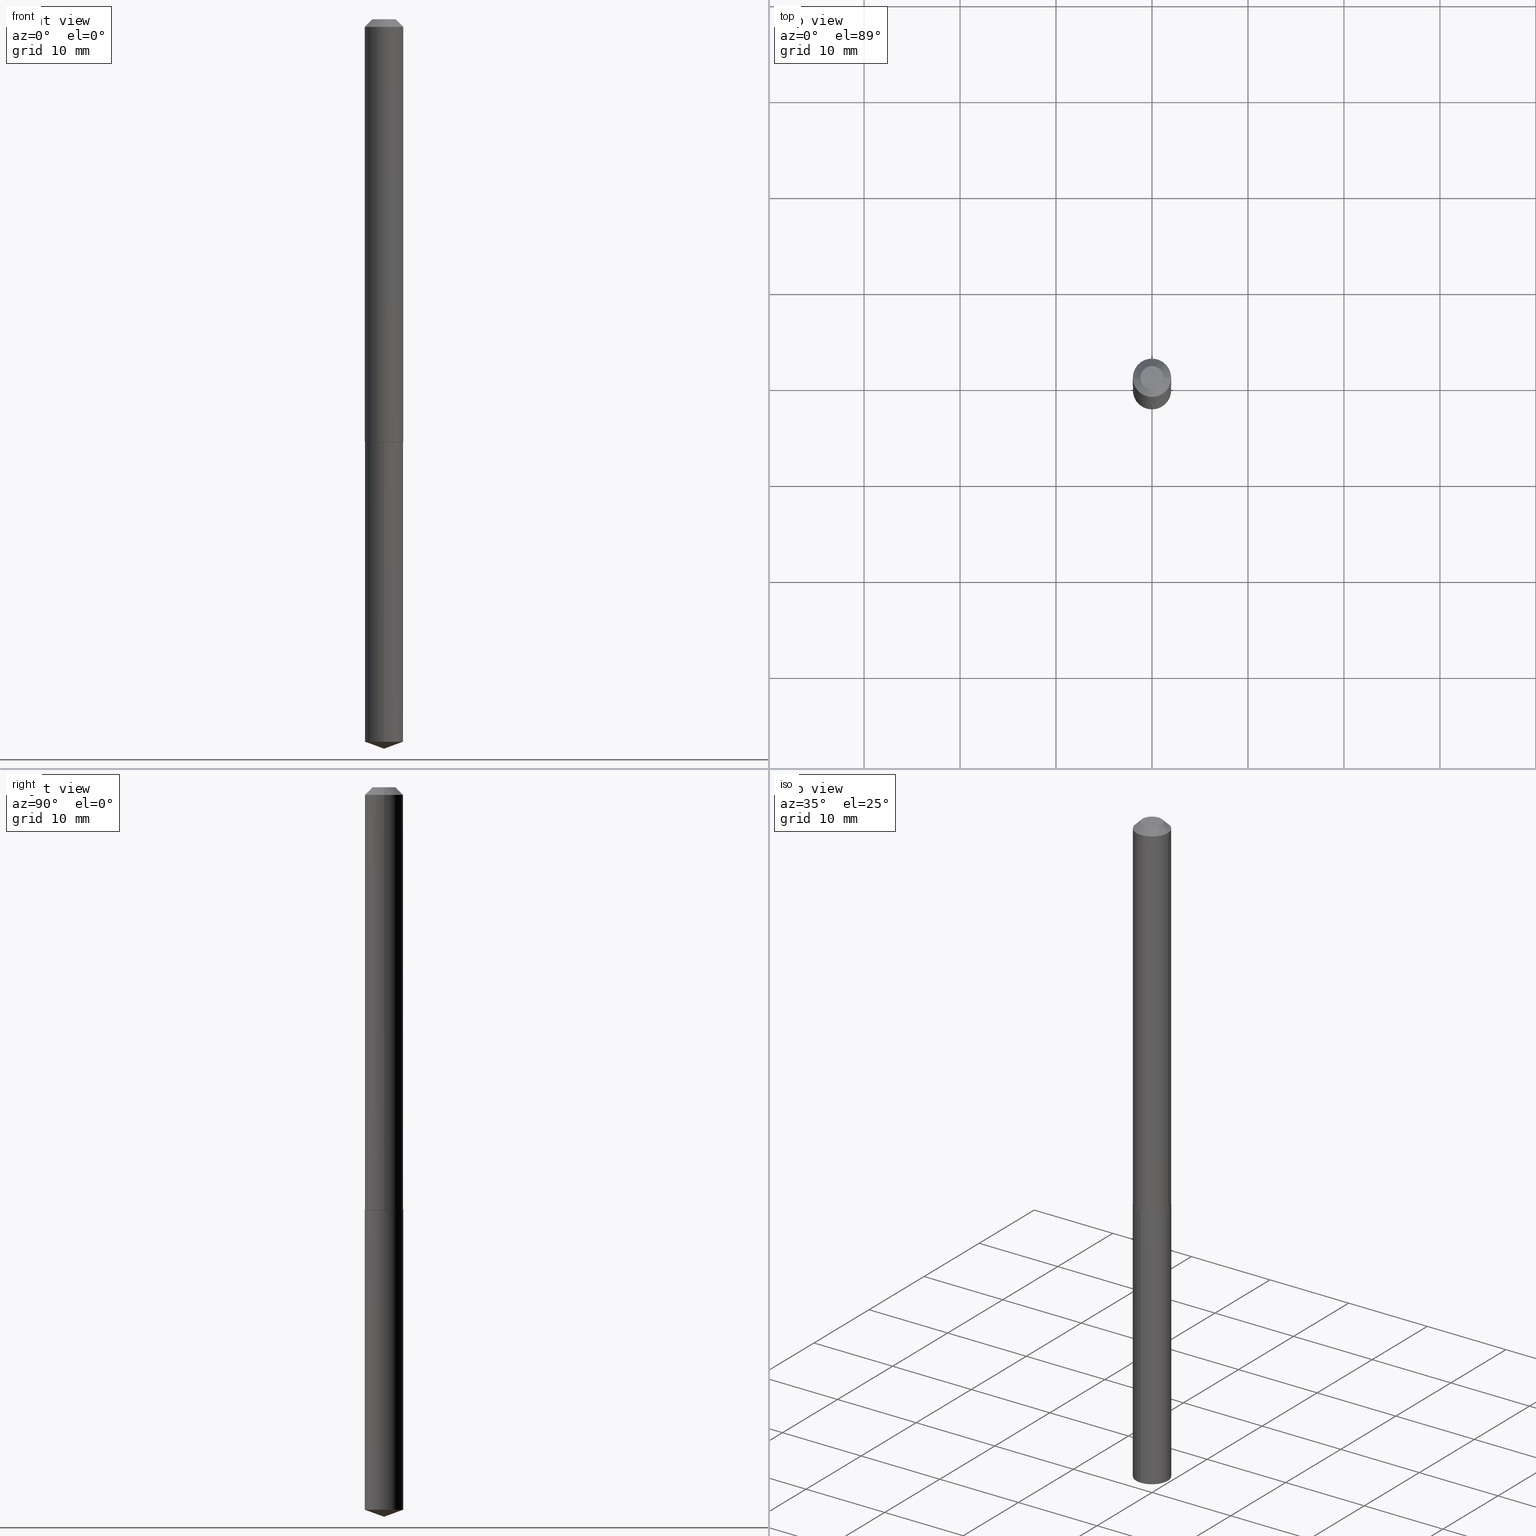
[diagram: canonical four-view strip — front | top / right | iso, engineering-drawing reading convention]
A machine part, canonical four-view strip (front | top / right | iso — engineering-drawing reading convention). The complete STEP part file that produces these views, byte-faithful:
ISO-10303-21;
HEADER;
FILE_DESCRIPTION (( 'STEP AP203' ),
    '1' );
FILE_NAME ('6030.STEP',
    '2024-04-23T02:05:32',
    ( '' ),
    ( '' ),
    'SwSTEP 2.0',
    'SolidWorks 2023',
    '' );
FILE_SCHEMA (( 'CONFIG_CONTROL_DESIGN' ));
ENDSEC;

DATA;
#1 = CARTESIAN_POINT ( 'NONE',  ( 0.000000000000000000, 0.000000000000000000, 0.000000000000000000 ) ) ;
#2 = ORIENTED_EDGE ( 'NONE', *, *, #178, .T. ) ;
#3 = CIRCLE ( 'NONE', #201, 0.07875000000000022260 ) ;
#4 = CONICAL_SURFACE ( 'NONE', #163, 0.07875000000000022260, 0.7853981633974482790 ) ;
#5 = APPROVAL_DATE_TIME ( #94, #50 ) ;
#6 = AXIS2_PLACEMENT_3D ( 'NONE', #103, #137, #261 ) ;
#7 = SHAPE_DEFINITION_REPRESENTATION ( #357, #302 ) ;
#8 = DESIGN_CONTEXT ( 'detailed design', #296, 'design' ) ;
#9 = DIMENSIONAL_EXPONENTS ( 1.000000000000000000, 0.000000000000000000, 0.000000000000000000, 0.000000000000000000, 0.000000000000000000, 0.000000000000000000, 0.000000000000000000 ) ;
#10 = ORIENTED_EDGE ( 'NONE', *, *, #185, .F. ) ;
#11 = EDGE_LOOP ( 'NONE', ( #174, #381, #175, #254 ) ) ;
#12 = CIRCLE ( 'NONE', #374, 0.04750000000000000749 ) ;
#13 = AXIS2_PLACEMENT_3D ( 'NONE', #291, #109, #44 ) ;
#14 = EDGE_CURVE ( 'NONE', #192, #153, #122, .T. ) ;
#15 = DIRECTION ( 'NONE',  ( -6.982962677686266711E-15, -1.000000000000000000, 3.555975582372723068E-15 ) ) ;
#16 = DIRECTION ( 'NONE',  ( -2.445468806185136597E-29, 3.491481338843145583E-15, 1.000000000000000000 ) ) ;
#17 = CARTESIAN_POINT ( 'NONE',  ( -0.07875000000000022260, -5.486994978197479195E-15, -1.731800000000000006 ) ) ;
#18 = COORDINATED_UNIVERSAL_TIME_OFFSET ( 5, 0, .BEHIND. ) ;
#19 = LINE ( 'NONE', #100, #66 ) ;
#20 = VECTOR ( 'NONE', #323, 39.37007874015748143 ) ;
#21 = CYLINDRICAL_SURFACE ( 'NONE', #25, 0.07875000000000011158 ) ;
#22 = DIRECTION ( 'NONE',  ( -2.439100213155441770E-29, 3.500601526539472950E-15, 1.000000000000000000 ) ) ;
#23 = EDGE_CURVE ( 'NONE', #37, #32, #282, .T. ) ;
#24 = DIRECTION ( 'NONE',  ( -2.439100213155441770E-29, 3.500601526539472950E-15, 1.000000000000000000 ) ) ;
#25 = AXIS2_PLACEMENT_3D ( 'NONE', #1, #365, #217 ) ;
#26 = EDGE_CURVE ( 'NONE', #299, #32, #363, .T. ) ;
#27 = CIRCLE ( 'NONE', #368, 0.07875000000000022260 ) ;
#28 = VERTEX_POINT ( 'NONE', #159 ) ;
#29 = CALENDAR_DATE ( 2024, 22, 4 ) ;
#30 = ORIENTED_EDGE ( 'NONE', *, *, #353, .F. ) ;
#31 = ORIENTED_EDGE ( 'NONE', *, *, #120, .F. ) ;
#32 = VERTEX_POINT ( 'NONE', #317 ) ;
#33 = CARTESIAN_POINT ( 'NONE',  ( 7.642090019328601786E-31, -1.091087918388490144E-16, -0.03125000000000020123 ) ) ;
#34 = ORIENTED_EDGE ( 'NONE', *, *, #318, .F. ) ;
#35 = VERTEX_POINT ( 'NONE', #350 ) ;
#36 = APPROVAL ( #359, 'UNSPECIFIED' ) ;
#37 = VERTEX_POINT ( 'NONE', #197 ) ;
#38 = EDGE_LOOP ( 'NONE', ( #10, #102 ) ) ;
#39 = CIRCLE ( 'NONE', #56, 0.07825000000000031930 ) ;
#40 = AXIS2_PLACEMENT_3D ( 'NONE', #322, #22, #204 ) ;
#41 = DIRECTION ( 'NONE',  ( 0.7071067811865454633, -7.319954787623248157E-15, -0.7071067811865495711 ) ) ;
#42 = DIRECTION ( 'NONE',  ( -2.439100213155441770E-29, 3.500601526539472950E-15, 1.000000000000000000 ) ) ;
#43 = EDGE_CURVE ( 'NONE', #227, #372, #337, .T. ) ;
#44 = DIRECTION ( 'NONE',  ( -1.000000000000000000, 6.982962677686265922E-15, -4.876176775795935793E-29 ) ) ;
#45 = CARTESIAN_POINT ( 'NONE',  ( 8.872200304756381696E-46, -1.266715065846978513E-31, -3.628016142474034163E-17 ) ) ;
#46 = EDGE_CURVE ( 'NONE', #35, #192, #161, .T. ) ;
#47 = FACE_OUTER_BOUND ( 'NONE', #339, .T. ) ;
#48 = CARTESIAN_POINT ( 'NONE',  ( -8.871850338557689614E-28, 1.273606068113621253E-13, 36.37797874015748079 ) ) ;
#49 = CLOSED_SHELL ( 'NONE', ( #148, #252, #222, #277, #92 ) ) ;
#50 = APPROVAL ( #152, 'UNSPECIFIED' ) ;
#51 = ORIENTED_EDGE ( 'NONE', *, *, #26, .F. ) ;
#52 = CARTESIAN_POINT ( 'NONE',  ( -0.04750000000000000749, 3.862451231095210259E-16, -3.628016142474284996E-17 ) ) ;
#53 = EDGE_LOOP ( 'NONE', ( #389, #209, #333, #273 ) ) ;
#54 = EDGE_LOOP ( 'NONE', ( #200, #182, #319, #313 ) ) ;
#55 = COORDINATED_UNIVERSAL_TIME_OFFSET ( 5, 0, .BEHIND. ) ;
#56 = AXIS2_PLACEMENT_3D ( 'NONE', #82, #166, #336 ) ;
#57 = CC_DESIGN_APPROVAL ( #309, ( #236 ) ) ;
#58 = ORIENTED_EDGE ( 'NONE', *, *, #154, .T. ) ;
#59 =( NAMED_UNIT ( * ) PLANE_ANGLE_UNIT ( ) SI_UNIT ( $, .RADIAN. ) );
#60 =( NAMED_UNIT ( * ) SI_UNIT ( $, .STERADIAN. ) SOLID_ANGLE_UNIT ( ) );
#61 = CARTESIAN_POINT ( 'NONE',  ( 4.236285612954512392E-29, -6.048293123277981078E-15, -1.732299999999999951 ) ) ;
#62 = APPROVAL_PERSON_ORGANIZATION ( #290, #50, #274 ) ;
#63 = CARTESIAN_POINT ( 'NONE',  ( 4.236285612954512392E-29, -6.048293123277981078E-15, -1.732299999999999951 ) ) ;
#64 = DIRECTION ( 'NONE',  ( 1.000000000000000000, -6.982962677686266711E-15, 4.868699817970218203E-29 ) ) ;
#65 = AXIS2_PLACEMENT_3D ( 'NONE', #61, #255, #156 ) ;
#66 = VECTOR ( 'NONE', #223, 39.37007874015748143 ) ;
#67 = CARTESIAN_POINT ( 'NONE',  ( 8.872200304756381696E-46, -1.266715065846978513E-31, -3.628016142474034163E-17 ) ) ;
#68 = DIRECTION ( 'NONE',  ( 6.982962677686265922E-15, 1.000000000000000000, -3.500601526539472556E-15 ) ) ;
#69 = DIRECTION ( 'NONE',  ( -6.982962677686266711E-15, -1.000000000000000000, 3.555975582372723068E-15 ) ) ;
#70 = ORIENTED_EDGE ( 'NONE', *, *, #185, .T. ) ;
#71 = FACE_OUTER_BOUND ( 'NONE', #53, .T. ) ;
#72 = CC_DESIGN_APPROVAL ( #50, ( #215 ) ) ;
#73 = CARTESIAN_POINT ( 'NONE',  ( 4.236285612954512392E-29, -6.048293123277981078E-15, -1.732299999999999951 ) ) ;
#74 = DIRECTION ( 'NONE',  ( 2.445468806185136597E-29, -3.491481338843145583E-15, -1.000000000000000000 ) ) ;
#75 = FACE_OUTER_BOUND ( 'NONE', #218, .T. ) ;
#76 = FACE_OUTER_BOUND ( 'NONE', #11, .T. ) ;
#77 = DIRECTION ( 'NONE',  ( -6.561838499445226095E-15, -0.9396926207859108704, 0.3420201433256621626 ) ) ;
#78 = CIRCLE ( 'NONE', #305, 0.07875000000000000056 ) ;
#79 = LOCAL_TIME ( 22, 5, 32.00000000000000000, #382 ) ;
#80 = ADVANCED_FACE ( 'NONE', ( #130 ), #4, .T. ) ;
#81 = DATE_TIME_ROLE ( 'creation_date' ) ;
#82 = CARTESIAN_POINT ( 'NONE',  ( 4.236285612954512392E-29, -6.048293123277981078E-15, -1.732299999999999951 ) ) ;
#83 = EDGE_LOOP ( 'NONE', ( #233, #335, #144, #34 ) ) ;
#84 = PERSON_AND_ORGANIZATION_ROLE ( 'creator' ) ;
#85 = DIRECTION ( 'NONE',  ( 1.000000000000000000, -6.982962677686265922E-15, 0.000000000000000000 ) ) ;
#86 = ORIENTED_EDGE ( 'NONE', *, *, #190, .T. ) ;
#87 = DATE_AND_TIME ( #29, #375 ) ;
#88 = PERSON_AND_ORGANIZATION ( #136, #247 ) ;
#89 = CARTESIAN_POINT ( 'NONE',  ( -0.07875000000000000056, -2.518275682812623564E-15, -0.03125000000000020123 ) ) ;
#90 = VECTOR ( 'NONE', #162, 39.37007874015748143 ) ;
#91 = CIRCLE ( 'NONE', #271, 0.07874999999999997280 ) ;
#92 = ADVANCED_FACE ( 'NONE', ( #75 ), #321, .F. ) ;
#93 = ORIENTED_EDGE ( 'NONE', *, *, #23, .F. ) ;
#94 = DATE_AND_TIME ( #183, #164 ) ;
#95 = DIRECTION ( 'NONE',  ( 1.000000000000000000, -6.982962677686265922E-15, 0.000000000000000000 ) ) ;
#96 = PRODUCT ( '6030', '6030', '', ( #334 ) ) ;
#97 = AXIS2_PLACEMENT_3D ( 'NONE', #45, #194, #249 ) ;
#98 = VERTEX_POINT ( 'NONE', #325 ) ;
#99 = PRODUCT_RELATED_PRODUCT_CATEGORY ( 'detail', '', ( #96 ) ) ;
#100 = CARTESIAN_POINT ( 'NONE',  ( -5.499083108677509444E-16, -0.07875000000000602352, -1.732299999999999729 ) ) ;
#101 = AXIS2_PLACEMENT_3D ( 'NONE', #33, #360, #146 ) ;
#102 = ORIENTED_EDGE ( 'NONE', *, *, #361, .F. ) ;
#103 = CARTESIAN_POINT ( 'NONE',  ( 4.236285612954512392E-29, -6.048293123277981078E-15, -1.732299999999999951 ) ) ;
#104 = ORIENTED_EDGE ( 'NONE', *, *, #198, .F. ) ;
#105 = LINE ( 'NONE', #297, #300 ) ;
#106 = DIRECTION ( 'NONE',  ( -2.439100213155441770E-29, 3.500601526539472950E-15, 1.000000000000000000 ) ) ;
#107 = CARTESIAN_POINT ( 'NONE',  ( 7.239152971254241713E-29, -1.035801438924454465E-14, -2.963437344051537359 ) ) ;
#108 = CARTESIAN_POINT ( 'NONE',  ( -5.499083108677209677E-16, -0.07875000000001036726, -2.963437344051536915 ) ) ;
#109 = DIRECTION ( 'NONE',  ( 2.438088387897960049E-29, -3.491481338843145188E-15, -1.000000000000000000 ) ) ;
#110 = CIRCLE ( 'NONE', #214, 0.07875000000000000056 ) ;
#111 = CC_DESIGN_PERSON_AND_ORGANIZATION_ASSIGNMENT ( #113, #84, ( #236 ) ) ;
#112 = EDGE_LOOP ( 'NONE', ( #30, #348, #51 ) ) ;
#113 = PERSON_AND_ORGANIZATION ( #136, #247 ) ;
#114 = ADVANCED_FACE ( 'NONE', ( #71 ), #21, .T. ) ;
#115 = PERSON_AND_ORGANIZATION ( #136, #247 ) ;
#116 = ORIENTED_EDGE ( 'NONE', *, *, #238, .T. ) ;
#117 = CALENDAR_DATE ( 2024, 22, 4 ) ;
#118 = CC_DESIGN_APPROVAL ( #36, ( #205 ) ) ;
#119 = PERSON_AND_ORGANIZATION_ROLE ( 'creator' ) ;
#120 = EDGE_CURVE ( 'NONE', #192, #362, #3, .T. ) ;
#121 = CONICAL_SURFACE ( 'NONE', #331, 108.1684023407367192, 1.221730476396041265 ) ;
#122 = LINE ( 'NONE', #221, #258 ) ;
#123 = ADVANCED_FACE ( 'NONE', ( #138 ), #219, .T. ) ;
#124 = AXIS2_PLACEMENT_3D ( 'NONE', #191, #74, #351 ) ;
#125 = MANIFOLD_SOLID_BREP ( 'Body-Move/Copy2[1]', #49 ) ;
#126 = EDGE_LOOP ( 'NONE', ( #70, #326, #224, #149 ) ) ;
#127 = CARTESIAN_POINT ( 'NONE',  ( 5.595524044111210058E-16, 0.07874999999999393596, -1.732300000000000173 ) ) ;
#128 = ADVANCED_FACE ( 'NONE', ( #275 ), #278, .T. ) ;
#129 = CARTESIAN_POINT ( 'NONE',  ( 0.07825000000000031930, -6.594709952806933783E-15, -1.732299999999999951 ) ) ;
#130 = FACE_OUTER_BOUND ( 'NONE', #126, .T. ) ;
#131 = CONICAL_SURFACE ( 'NONE', #180, 0.07875000000000022260, 0.7853981633974482790 ) ;
#132 = LOCAL_TIME ( 22, 5, 32.00000000000000000, #268 ) ;
#133 = DIRECTION ( 'NONE',  ( -2.445468806185136597E-29, 3.491481338843145583E-15, 1.000000000000000000 ) ) ;
#134 = DIRECTION ( 'NONE',  ( 1.000000000000000000, -6.982962677686265922E-15, 4.876176775795935793E-29 ) ) ;
#135 = ORIENTED_EDGE ( 'NONE', *, *, #46, .F. ) ;
#136 = PERSON ( 'UNSPECIFIED', 'UNSPECIFIED', 'UNSPECIFIED', ('UNSPECIFIED'), ('UNSPECIFIED'), ('UNSPECIFIED') ) ;
#137 = DIRECTION ( 'NONE',  ( -2.445468806185136597E-29, 3.491481338843145583E-15, 1.000000000000000000 ) ) ;
#138 = FACE_OUTER_BOUND ( 'NONE', #245, .T. ) ;
#139 = PLANE ( 'NONE',  #13 ) ;
#140 = APPROVAL_ROLE ( '' ) ;
#141 = AXIS2_PLACEMENT_3D ( 'NONE', #379, #167, #196 ) ;
#142 = DATE_TIME_ROLE ( 'classification_date' ) ;
#143 = PERSON_AND_ORGANIZATION_ROLE ( 'design_owner' ) ;
#144 = ORIENTED_EDGE ( 'NONE', *, *, #298, .F. ) ;
#145 = CARTESIAN_POINT ( 'NONE',  ( 0.000000000000000000, 0.000000000000000000, 0.000000000000000000 ) ) ;
#146 = DIRECTION ( 'NONE',  ( -1.000000000000000000, 6.982962677686265922E-15, 0.000000000000000000 ) ) ;
#147 = DATE_AND_TIME ( #117, #132 ) ;
#148 = ADVANCED_FACE ( 'NONE', ( #181 ), #338, .T. ) ;
#149 = ORIENTED_EDGE ( 'NONE', *, *, #211, .F. ) ;
#150 = AXIS2_PLACEMENT_3D ( 'NONE', #63, #276, #248 ) ;
#151 = LOCAL_TIME ( 22, 5, 32.00000000000000000, #55 ) ;
#152 = APPROVAL_STATUS ( 'not_yet_approved' ) ;
#153 = VERTEX_POINT ( 'NONE', #89 ) ;
#154 = EDGE_CURVE ( 'NONE', #28, #170, #250, .T. ) ;
#155 = DIRECTION ( 'NONE',  ( -0.7071067811865474617, 7.493145998870352582E-15, 0.7071067811865474617 ) ) ;
#156 = DIRECTION ( 'NONE',  ( -6.982962677686265922E-15, -1.000000000000000000, 3.469013325287954477E-15 ) ) ;
#157 = DIRECTION ( 'NONE',  ( -2.445468806185136597E-29, 3.491481338843145583E-15, 1.000000000000000000 ) ) ;
#158 = FACE_OUTER_BOUND ( 'NONE', #112, .T. ) ;
#159 = CARTESIAN_POINT ( 'NONE',  ( 5.595524044111512783E-16, 0.07874999999999393596, -1.732300000000000173 ) ) ;
#160 = FACE_OUTER_BOUND ( 'NONE', #186, .T. ) ;
#161 = LINE ( 'NONE', #17, #384 ) ;
#162 = DIRECTION ( 'NONE',  ( -2.445468806185136877E-29, 3.491481338843145188E-15, 1.000000000000000000 ) ) ;
#163 = AXIS2_PLACEMENT_3D ( 'NONE', #257, #369, #377 ) ;
#164 = LOCAL_TIME ( 22, 5, 32.00000000000000000, #18 ) ;
#165 = LINE ( 'NONE', #295, #332 ) ;
#166 = DIRECTION ( 'NONE',  ( -2.445468806185136597E-29, 3.491481338843145583E-15, 1.000000000000000000 ) ) ;
#167 = DIRECTION ( 'NONE',  ( -2.439100213155441770E-29, 3.500601526539472950E-15, 1.000000000000000000 ) ) ;
#168 = ORIENTED_EDGE ( 'NONE', *, *, #361, .T. ) ;
#169 =( LENGTH_UNIT ( ) NAMED_UNIT ( * ) SI_UNIT ( $, .METRE. ) );
#170 = VERTEX_POINT ( 'NONE', #366 ) ;
#171 = DIRECTION ( 'NONE',  ( 1.000000000000000000, -6.982962677686267499E-15, 4.876176775795936353E-29 ) ) ;
#172 = PERSON_AND_ORGANIZATION ( #136, #247 ) ;
#173 = VECTOR ( 'NONE', #312, 39.37007874015748854 ) ;
#174 = ORIENTED_EDGE ( 'NONE', *, *, #307, .F. ) ;
#175 = ORIENTED_EDGE ( 'NONE', *, *, #318, .T. ) ;
#176 = PERSON_AND_ORGANIZATION ( #136, #247 ) ;
#177 = APPLICATION_PROTOCOL_DEFINITION ( 'international standard', 'config_control_design', 1994, #296 ) ;
#178 = EDGE_CURVE ( 'NONE', #98, #153, #78, .T. ) ;
#179 = APPLICATION_PROTOCOL_DEFINITION ( 'international standard', 'config_control_design', 1994, #259 ) ;
#180 = AXIS2_PLACEMENT_3D ( 'NONE', #328, #279, #208 ) ;
#181 = FACE_OUTER_BOUND ( 'NONE', #83, .T. ) ;
#182 = ORIENTED_EDGE ( 'NONE', *, *, #190, .F. ) ;
#183 = CALENDAR_DATE ( 2024, 22, 4 ) ;
#184 = UNCERTAINTY_MEASURE_WITH_UNIT (LENGTH_MEASURE( 1.000000000000000082E-05 ), #213, 'distance_accuracy_value', 'NONE');
#185 = EDGE_CURVE ( 'NONE', #352, #35, #39, .T. ) ;
#186 = EDGE_LOOP ( 'NONE', ( #202, #239, #2, #104 ) ) ;
#187 = CC_DESIGN_PERSON_AND_ORGANIZATION_ASSIGNMENT ( #88, #356, ( #236 ) ) ;
#188 = CARTESIAN_POINT ( 'NONE',  ( 4.235062878551419591E-29, -6.046547382608559574E-15, -1.731800000000000006 ) ) ;
#189 = ORIENTED_EDGE ( 'NONE', *, *, #120, .T. ) ;
#190 = EDGE_CURVE ( 'NONE', #372, #227, #12, .T. ) ;
#191 = CARTESIAN_POINT ( 'NONE',  ( 7.642090019328601786E-31, -1.091087918388490144E-16, -0.03125000000000020123 ) ) ;
#192 = VERTEX_POINT ( 'NONE', #342 ) ;
#193 = DIRECTION ( 'NONE',  ( -2.438088387897960049E-29, 3.491481338843145188E-15, 1.000000000000000000 ) ) ;
#194 = DIRECTION ( 'NONE',  ( -2.445468806185136597E-29, 3.491481338843145583E-15, 1.000000000000000000 ) ) ;
#195 = ADVANCED_FACE ( 'NONE', ( #207 ), #131, .T. ) ;
#196 = DIRECTION ( 'NONE',  ( -6.982962677686265922E-15, -1.000000000000000000, 3.469013325287954477E-15 ) ) ;
#197 = CARTESIAN_POINT ( 'NONE',  ( 7.298031747782397378E-29, -1.047414982755875716E-14, -2.992100000000000204 ) ) ;
#198 = EDGE_CURVE ( 'NONE', #372, #153, #105, .T. ) ;
#199 = LINE ( 'NONE', #253, #90 ) ;
#200 = ORIENTED_EDGE ( 'NONE', *, *, #203, .F. ) ;
#201 = AXIS2_PLACEMENT_3D ( 'NONE', #188, #286, #95 ) ;
#202 = ORIENTED_EDGE ( 'NONE', *, *, #43, .F. ) ;
#203 = EDGE_CURVE ( 'NONE', #227, #98, #285, .T. ) ;
#204 = DIRECTION ( 'NONE',  ( -6.982962677686264344E-15, -1.000000000000000000, 6.938026650575906587E-15 ) ) ;
#205 = PRODUCT_DEFINITION ( 'UNKNOWN', '', #236, #8 ) ;
#206 = PERSON_AND_ORGANIZATION ( #136, #247 ) ;
#207 = FACE_OUTER_BOUND ( 'NONE', #287, .T. ) ;
#208 = DIRECTION ( 'NONE',  ( 1.000000000000000000, -6.982962677686265922E-15, 0.000000000000000000 ) ) ;
#209 = ORIENTED_EDGE ( 'NONE', *, *, #14, .T. ) ;
#210 = SECURITY_CLASSIFICATION_LEVEL ( 'unclassified' ) ;
#211 = EDGE_CURVE ( 'NONE', #352, #362, #316, .T. ) ;
#212 = PERSON_AND_ORGANIZATION_ROLE ( 'classification_officer' ) ;
#213 =( CONVERSION_BASED_UNIT ( 'INCH', #330 ) LENGTH_UNIT ( ) NAMED_UNIT ( #9 ) );
#214 = AXIS2_PLACEMENT_3D ( 'NONE', #228, #16, #349 ) ;
#215 = SECURITY_CLASSIFICATION ( '', '', #210 ) ;
#216 = CARTESIAN_POINT ( 'NONE',  ( 0.000000000000000000, 0.000000000000000000, 0.000000000000000000 ) ) ;
#217 = DIRECTION ( 'NONE',  ( 1.000000000000000000, -6.982962677686267499E-15, 4.876176775795936353E-29 ) ) ;
#218 = EDGE_LOOP ( 'NONE', ( #230, #58 ) ) ;
#219 = CYLINDRICAL_SURFACE ( 'NONE', #225, 0.07875000000000011158 ) ;
#220 = CC_DESIGN_SECURITY_CLASSIFICATION ( #215, ( #236 ) ) ;
#221 = CARTESIAN_POINT ( 'NONE',  ( -0.07875000000000011158, 5.595524044110796892E-16, -3.873661383575744098E-30 ) ) ;
#222 = ADVANCED_FACE ( 'NONE', ( #320 ), #283, .T. ) ;
#223 = DIRECTION ( 'NONE',  ( -2.439100213155441770E-29, 3.500601526539472556E-15, 1.000000000000000000 ) ) ;
#224 = ORIENTED_EDGE ( 'NONE', *, *, #386, .F. ) ;
#225 = AXIS2_PLACEMENT_3D ( 'NONE', #216, #133, #171 ) ;
#226 = CONICAL_SURFACE ( 'NONE', #124, 0.07875000000000000056, 0.7853981633974453924 ) ;
#227 = VERTEX_POINT ( 'NONE', #376 ) ;
#228 = CARTESIAN_POINT ( 'NONE',  ( 7.642090019328601786E-31, -1.091087918388490144E-16, -0.03125000000000020123 ) ) ;
#229 = CARTESIAN_POINT ( 'NONE',  ( 0.07875000000000000056, -6.493730091633570889E-16, -0.03125000000000020123 ) ) ;
#230 = ORIENTED_EDGE ( 'NONE', *, *, #298, .T. ) ;
#231 = EDGE_CURVE ( 'NONE', #153, #98, #110, .T. ) ;
#232 = DIRECTION ( 'NONE',  ( -2.439100213155441770E-29, 3.500601526539472950E-15, 1.000000000000000000 ) ) ;
#233 = ORIENTED_EDGE ( 'NONE', *, *, #26, .T. ) ;
#234 = ORIENTED_EDGE ( 'NONE', *, *, #43, .T. ) ;
#235 = VECTOR ( 'NONE', #41, 39.37007874015748143 ) ;
#236 = PRODUCT_DEFINITION_FORMATION_WITH_SPECIFIED_SOURCE ( 'ANY', '', #96, .NOT_KNOWN. ) ;
#237 = CARTESIAN_POINT ( 'NONE',  ( -8.871850338557689614E-28, 1.273606068113621253E-13, 36.37797874015748079 ) ) ;
#238 = EDGE_CURVE ( 'NONE', #362, #98, #199, .T. ) ;
#239 = ORIENTED_EDGE ( 'NONE', *, *, #203, .T. ) ;
#240 = APPROVAL_STATUS ( 'not_yet_approved' ) ;
#241 = ORIENTED_EDGE ( 'NONE', *, *, #231, .F. ) ;
#242 = DIRECTION ( 'NONE',  ( -2.445468806185136597E-29, 3.491481338843145583E-15, 1.000000000000000000 ) ) ;
#243 = AXIS2_PLACEMENT_3D ( 'NONE', #145, #388, #266 ) ;
#244 = CALENDAR_DATE ( 2024, 22, 4 ) ;
#245 = EDGE_LOOP ( 'NONE', ( #390, #189, #116, #241 ) ) ;
#246 = AXIS2_PLACEMENT_3D ( 'NONE', #48, #24, #69 ) ;
#247 = ORGANIZATION ( 'UNSPECIFIED', 'UNSPECIFIED', '' ) ;
#248 = DIRECTION ( 'NONE',  ( -6.982962677686265922E-15, -1.000000000000000000, 3.469013325287954477E-15 ) ) ;
#249 = DIRECTION ( 'NONE',  ( 1.000000000000000000, -6.982962677686266711E-15, 4.868699817970218203E-29 ) ) ;
#250 = CIRCLE ( 'NONE', #65, 0.07874999999999997280 ) ;
#251 = DIRECTION ( 'NONE',  ( -2.445468806185136877E-29, 3.491481338843145188E-15, 1.000000000000000000 ) ) ;
#252 = ADVANCED_FACE ( 'NONE', ( #158 ), #121, .T. ) ;
#253 = CARTESIAN_POINT ( 'NONE',  ( 0.07875000000000011158, -5.499083108677943318E-16, 3.839989210939305322E-30 ) ) ;
#254 = ORIENTED_EDGE ( 'NONE', *, *, #154, .F. ) ;
#255 = DIRECTION ( 'NONE',  ( -2.439100213155441770E-29, 3.500601526539472950E-15, 1.000000000000000000 ) ) ;
#256 = PLANE ( 'NONE',  #344 ) ;
#257 = CARTESIAN_POINT ( 'NONE',  ( 4.235062878551419591E-29, -6.046547382608559574E-15, -1.731800000000000006 ) ) ;
#258 = VECTOR ( 'NONE', #251, 39.37007874015748143 ) ;
#259 = APPLICATION_CONTEXT ( 'configuration controlled 3d designs of mechanical parts and assemblies' ) ;
#260 = DIRECTION ( 'NONE',  ( -0.7071067811865454633, 2.468850131082235367E-15, -0.7071067811865495711 ) ) ;
#261 = DIRECTION ( 'NONE',  ( 1.000000000000000000, -6.982962677686264344E-15, 0.000000000000000000 ) ) ;
#262 = CARTESIAN_POINT ( 'NONE',  ( 4.236285612954512392E-29, -6.048293123277981078E-15, -1.732299999999999951 ) ) ;
#263 = MANIFOLD_SOLID_BREP ( 'Body-Move/Copy2[2]', #343 ) ;
#264 = APPROVAL_ROLE ( '' ) ;
#265 = ADVANCED_FACE ( 'NONE', ( #160 ), #226, .T. ) ;
#266 = DIRECTION ( 'NONE',  ( 1.000000000000000000, 0.000000000000000000, 0.000000000000000000 ) ) ;
#267 = EDGE_CURVE ( 'NONE', #32, #299, #314, .T. ) ;
#268 = COORDINATED_UNIVERSAL_TIME_OFFSET ( 5, 0, .BEHIND. ) ;
#269 = DIRECTION ( 'NONE',  ( 1.000000000000000000, -6.982962677686264344E-15, 0.000000000000000000 ) ) ;
#270 = APPROVAL_DATE_TIME ( #358, #309 ) ;
#271 = AXIS2_PLACEMENT_3D ( 'NONE', #262, #232, #288 ) ;
#272 = CALENDAR_DATE ( 2024, 22, 4 ) ;
#273 = ORIENTED_EDGE ( 'NONE', *, *, #238, .F. ) ;
#274 = APPROVAL_ROLE ( '' ) ;
#275 = FACE_OUTER_BOUND ( 'NONE', #54, .T. ) ;
#276 = DIRECTION ( 'NONE',  ( -2.439100213155441770E-29, 3.500601526539472950E-15, 1.000000000000000000 ) ) ;
#277 = ADVANCED_FACE ( 'NONE', ( #76 ), #371, .T. ) ;
#278 = CONICAL_SURFACE ( 'NONE', #101, 0.07875000000000000056, 0.7853981633974453924 ) ;
#279 = DIRECTION ( 'NONE',  ( -2.445468806185136597E-29, 3.491481338843145583E-15, 1.000000000000000000 ) ) ;
#280 = ADVANCED_FACE ( 'NONE', ( #47 ), #139, .F. ) ;
#281 = CARTESIAN_POINT ( 'NONE',  ( 4.236285612954512392E-29, -6.048293123277981078E-15, -1.732299999999999951 ) ) ;
#282 = LINE ( 'NONE', #346, #20 ) ;
#283 = CONICAL_SURFACE ( 'NONE', #246, 108.1684023407367192, 1.221730476396041265 ) ;
#284 = APPROVAL_PERSON_ORGANIZATION ( #206, #36, #140 ) ;
#285 = LINE ( 'NONE', #229, #235 ) ;
#286 = DIRECTION ( 'NONE',  ( -2.445468806185136597E-29, 3.491481338843145583E-15, 1.000000000000000000 ) ) ;
#287 = EDGE_LOOP ( 'NONE', ( #135, #168, #311, #31 ) ) ;
#288 = DIRECTION ( 'NONE',  ( -6.982962677686265922E-15, -1.000000000000000000, 3.469013325287954477E-15 ) ) ;
#289 = EDGE_LOOP ( 'NONE', ( #93, #370, #387 ) ) ;
#290 = PERSON_AND_ORGANIZATION ( #136, #247 ) ;
#291 = CARTESIAN_POINT ( 'NONE',  ( 4.436100152378190848E-46, -6.333575329234892565E-32, -1.814008071237017081E-17 ) ) ;
#292 = DIRECTION ( 'NONE',  ( -6.982962677686264344E-15, -1.000000000000000000, 6.938026650575906587E-15 ) ) ;
#293 =( GEOMETRIC_REPRESENTATION_CONTEXT ( 3 ) GLOBAL_UNCERTAINTY_ASSIGNED_CONTEXT ( ( #184 ) ) GLOBAL_UNIT_ASSIGNED_CONTEXT ( ( #213, #59, #60 ) ) REPRESENTATION_CONTEXT ( 'NONE', 'WORKASPACE' ) );
#294 = CARTESIAN_POINT ( 'NONE',  ( 7.642090019328601786E-31, -1.091087918388490144E-16, -0.03125000000000020123 ) ) ;
#295 = CARTESIAN_POINT ( 'NONE',  ( 7.298031747782397378E-29, -1.047414982755875716E-14, -2.992100000000000204 ) ) ;
#296 = APPLICATION_CONTEXT ( 'configuration controlled 3d designs of mechanical parts and assemblies' ) ;
#297 = CARTESIAN_POINT ( 'NONE',  ( -0.07875000000000000056, 4.407995190289444916E-16, -0.03125000000000020123 ) ) ;
#298 = EDGE_CURVE ( 'NONE', #170, #28, #91, .T. ) ;
#299 = VERTEX_POINT ( 'NONE', #108 ) ;
#300 = VECTOR ( 'NONE', #260, 39.37007874015748143 ) ;
#301 = COORDINATED_UNIVERSAL_TIME_OFFSET ( 5, 0, .BEHIND. ) ;
#302 = ADVANCED_BREP_SHAPE_REPRESENTATION ( '6030', ( #125, #263, #243 ), #293 ) ;
#303 = DATE_AND_TIME ( #272, #151 ) ;
#304 = CC_DESIGN_DATE_AND_TIME_ASSIGNMENT ( #303, #81, ( #205 ) ) ;
#305 = AXIS2_PLACEMENT_3D ( 'NONE', #294, #157, #269 ) ;
#306 = CARTESIAN_POINT ( 'NONE',  ( 4.235062878551419591E-29, -6.046547382608559574E-15, -1.731800000000000006 ) ) ;
#307 = EDGE_CURVE ( 'NONE', #32, #28, #347, .T. ) ;
#308 = AXIS2_PLACEMENT_3D ( 'NONE', #281, #345, #68 ) ;
#309 = APPROVAL ( #240, 'UNSPECIFIED' ) ;
#310 = CC_DESIGN_PERSON_AND_ORGANIZATION_ASSIGNMENT ( #176, #143, ( #96 ) ) ;
#311 = ORIENTED_EDGE ( 'NONE', *, *, #211, .T. ) ;
#312 = DIRECTION ( 'NONE',  ( 0.7071067811865474617, -2.468850131082256666E-15, 0.7071067811865474617 ) ) ;
#313 = ORIENTED_EDGE ( 'NONE', *, *, #231, .T. ) ;
#314 = CIRCLE ( 'NONE', #40, 0.07875000000000000056 ) ;
#315 = VECTOR ( 'NONE', #373, 39.37007874015748143 ) ;
#316 = LINE ( 'NONE', #378, #173 ) ;
#317 = CARTESIAN_POINT ( 'NONE',  ( 5.595524044111512783E-16, 0.07874999999998963385, -2.963437344051538247 ) ) ;
#318 = EDGE_CURVE ( 'NONE', #299, #170, #19, .T. ) ;
#319 = ORIENTED_EDGE ( 'NONE', *, *, #198, .T. ) ;
#320 = FACE_OUTER_BOUND ( 'NONE', #289, .T. ) ;
#321 = PLANE ( 'NONE',  #308 ) ;
#322 = CARTESIAN_POINT ( 'NONE',  ( 7.239152971254241713E-29, -1.035801438924454465E-14, -2.963437344051537359 ) ) ;
#323 = DIRECTION ( 'NONE',  ( 6.676917655467993373E-15, 0.9396926207859132019, 0.3420201433256555568 ) ) ;
#324 = AXIS2_PLACEMENT_3D ( 'NONE', #107, #42, #292 ) ;
#325 = CARTESIAN_POINT ( 'NONE',  ( 0.07875000000000000056, -6.590171027066424463E-16, -0.03125000000000020123 ) ) ;
#326 = ORIENTED_EDGE ( 'NONE', *, *, #46, .T. ) ;
#327 = CARTESIAN_POINT ( 'NONE',  ( 0.07875000000000022260, -6.596455693476355287E-15, -1.731800000000000006 ) ) ;
#328 = CARTESIAN_POINT ( 'NONE',  ( 4.235062878551419591E-29, -6.046547382608559574E-15, -1.731800000000000006 ) ) ;
#329 = PERSON_AND_ORGANIZATION ( #136, #247 ) ;
#330 = LENGTH_MEASURE_WITH_UNIT ( LENGTH_MEASURE( 0.02539999999999999897 ), #169 );
#331 = AXIS2_PLACEMENT_3D ( 'NONE', #237, #106, #15 ) ;
#332 = VECTOR ( 'NONE', #77, 39.37007874015747433 ) ;
#333 = ORIENTED_EDGE ( 'NONE', *, *, #178, .F. ) ;
#334 = MECHANICAL_CONTEXT ( 'NONE', #259, 'mechanical' ) ;
#335 = ORIENTED_EDGE ( 'NONE', *, *, #307, .T. ) ;
#336 = DIRECTION ( 'NONE',  ( 1.000000000000000000, -6.982962677686264344E-15, 0.000000000000000000 ) ) ;
#337 = CIRCLE ( 'NONE', #97, 0.04750000000000000749 ) ;
#338 = CYLINDRICAL_SURFACE ( 'NONE', #150, 0.07874999999999997280 ) ;
#339 = EDGE_LOOP ( 'NONE', ( #86, #234 ) ) ;
#340 = CC_DESIGN_DATE_AND_TIME_ASSIGNMENT ( #87, #142, ( #215 ) ) ;
#341 = ADVANCED_FACE ( 'NONE', ( #354 ), #256, .F. ) ;
#342 = CARTESIAN_POINT ( 'NONE',  ( -0.07875000000000022260, -5.486994978197479195E-15, -1.731800000000000006 ) ) ;
#343 = CLOSED_SHELL ( 'NONE', ( #265, #114, #80, #341, #195, #123, #128, #280 ) ) ;
#344 = AXIS2_PLACEMENT_3D ( 'NONE', #73, #193, #134 ) ;
#345 = DIRECTION ( 'NONE',  ( 2.439100213155441770E-29, -3.500601526539472556E-15, -1.000000000000000000 ) ) ;
#346 = CARTESIAN_POINT ( 'NONE',  ( 7.320289855930266829E-29, -1.044255202526606038E-14, -2.992100000000000204 ) ) ;
#347 = LINE ( 'NONE', #127, #315 ) ;
#348 = ORIENTED_EDGE ( 'NONE', *, *, #23, .T. ) ;
#349 = DIRECTION ( 'NONE',  ( 1.000000000000000000, -6.982962677686264344E-15, 0.000000000000000000 ) ) ;
#350 = CARTESIAN_POINT ( 'NONE',  ( -0.07825000000000031930, -5.489644205371590396E-15, -1.732299999999999951 ) ) ;
#351 = DIRECTION ( 'NONE',  ( -1.000000000000000000, 6.982962677686265922E-15, 0.000000000000000000 ) ) ;
#352 = VERTEX_POINT ( 'NONE', #129 ) ;
#353 = EDGE_CURVE ( 'NONE', #37, #299, #165, .T. ) ;
#354 = FACE_OUTER_BOUND ( 'NONE', #38, .T. ) ;
#355 = CIRCLE ( 'NONE', #6, 0.07825000000000031930 ) ;
#356 = PERSON_AND_ORGANIZATION_ROLE ( 'design_supplier' ) ;
#357 = PRODUCT_DEFINITION_SHAPE ( 'NONE', 'NONE',  #205 ) ;
#358 = DATE_AND_TIME ( #244, #79 ) ;
#359 = APPROVAL_STATUS ( 'not_yet_approved' ) ;
#360 = DIRECTION ( 'NONE',  ( 2.445468806185136597E-29, -3.491481338843145583E-15, -1.000000000000000000 ) ) ;
#361 = EDGE_CURVE ( 'NONE', #35, #352, #355, .T. ) ;
#362 = VERTEX_POINT ( 'NONE', #327 ) ;
#363 = CIRCLE ( 'NONE', #324, 0.07875000000000000056 ) ;
#364 = CC_DESIGN_PERSON_AND_ORGANIZATION_ASSIGNMENT ( #115, #119, ( #205 ) ) ;
#365 = DIRECTION ( 'NONE',  ( -2.445468806185136597E-29, 3.491481338843145583E-15, 1.000000000000000000 ) ) ;
#366 = CARTESIAN_POINT ( 'NONE',  ( -5.499083108677509444E-16, -0.07875000000000602352, -1.732299999999999729 ) ) ;
#367 = DIRECTION ( 'NONE',  ( -2.445468806185136597E-29, 3.491481338843145583E-15, 1.000000000000000000 ) ) ;
#368 = AXIS2_PLACEMENT_3D ( 'NONE', #306, #242, #85 ) ;
#369 = DIRECTION ( 'NONE',  ( -2.445468806185136597E-29, 3.491481338843145583E-15, 1.000000000000000000 ) ) ;
#370 = ORIENTED_EDGE ( 'NONE', *, *, #353, .T. ) ;
#371 = CYLINDRICAL_SURFACE ( 'NONE', #141, 0.07874999999999997280 ) ;
#372 = VERTEX_POINT ( 'NONE', #52 ) ;
#373 = DIRECTION ( 'NONE',  ( -2.439100213155441770E-29, 3.500601526539472556E-15, 1.000000000000000000 ) ) ;
#374 = AXIS2_PLACEMENT_3D ( 'NONE', #67, #367, #64 ) ;
#375 = LOCAL_TIME ( 22, 5, 32.00000000000000000, #301 ) ;
#376 = CARTESIAN_POINT ( 'NONE',  ( 0.04750000000000000749, -4.876233320287524565E-16, -3.628016142473747584E-17 ) ) ;
#377 = DIRECTION ( 'NONE',  ( 1.000000000000000000, -6.982962677686265922E-15, 0.000000000000000000 ) ) ;
#378 = CARTESIAN_POINT ( 'NONE',  ( 0.07875000000000022260, -6.596455693476355287E-15, -1.731800000000000006 ) ) ;
#379 = CARTESIAN_POINT ( 'NONE',  ( 4.236285612954512392E-29, -6.048293123277981078E-15, -1.732299999999999951 ) ) ;
#380 = APPROVAL_PERSON_ORGANIZATION ( #329, #309, #264 ) ;
#381 = ORIENTED_EDGE ( 'NONE', *, *, #267, .T. ) ;
#382 = COORDINATED_UNIVERSAL_TIME_OFFSET ( 5, 0, .BEHIND. ) ;
#383 = APPROVAL_DATE_TIME ( #147, #36 ) ;
#384 = VECTOR ( 'NONE', #155, 39.37007874015748854 ) ;
#385 = CC_DESIGN_PERSON_AND_ORGANIZATION_ASSIGNMENT ( #172, #212, ( #215 ) ) ;
#386 = EDGE_CURVE ( 'NONE', #362, #192, #27, .T. ) ;
#387 = ORIENTED_EDGE ( 'NONE', *, *, #267, .F. ) ;
#388 = DIRECTION ( 'NONE',  ( 0.000000000000000000, 0.000000000000000000, 1.000000000000000000 ) ) ;
#389 = ORIENTED_EDGE ( 'NONE', *, *, #386, .T. ) ;
#390 = ORIENTED_EDGE ( 'NONE', *, *, #14, .F. ) ;
ENDSEC;
END-ISO-10303-21;
